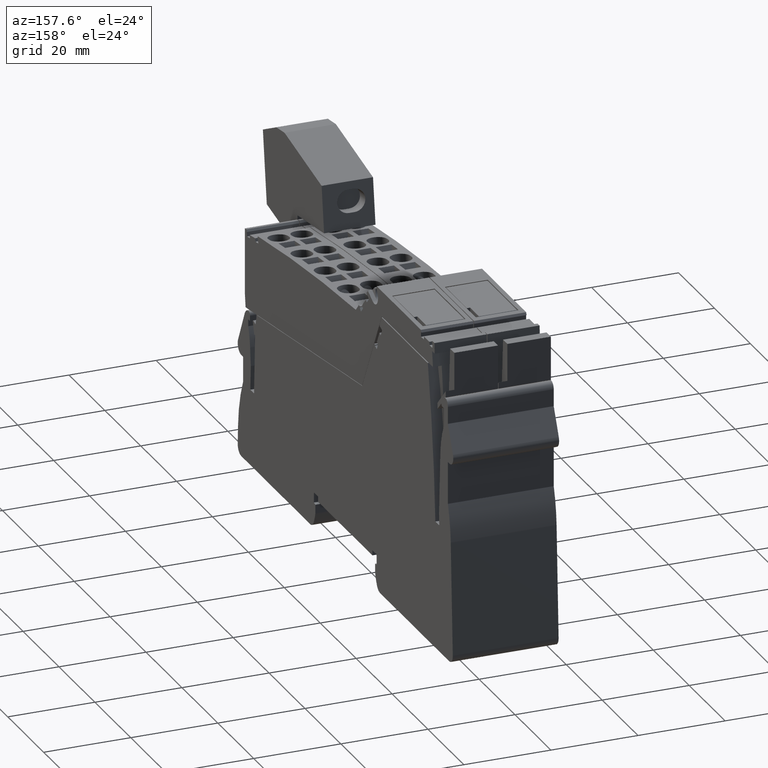
[diagram: clean part render]
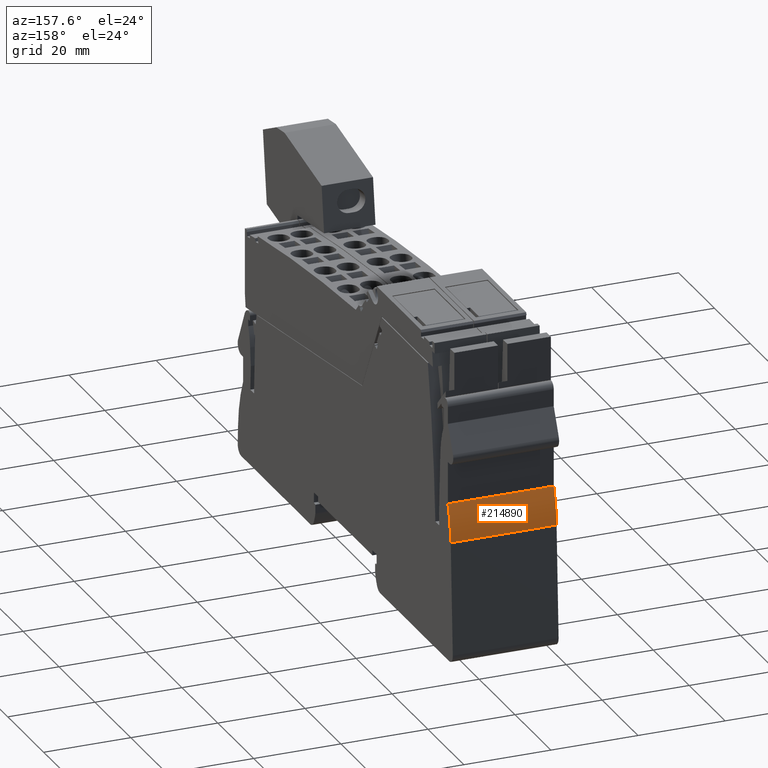
[diagram: same view with one face highlighted and labeled with its STEP entity id]
A machine part, auxiliary view. The second image highlights one B-rep face of the part: STEP entity #214890.
In plain terms, the highlighted cylindrical surface (partial cylindrical patch) has radius 30 mm, axis along (1, 0, 0).
Its self-contained STEP definition (entity closure, byte-faithful):
#198730=CARTESIAN_POINT('',(293.72862020886,-26.6633289582241,12.15));
#198740=VERTEX_POINT('',#198730);
#198770=CARTESIAN_POINT('',(265.338905386229,-36.3599310584288,12.15));
#198780=DIRECTION('',(1.61619556307429E-58,1.53640057743941E-44,1.));
#198790=DIRECTION('',(1.,-1.05193631583234E-14,0.));
#198800=AXIS2_PLACEMENT_3D('',#198770,#198780,#198790);
#198810=CIRCLE('',#198800,29.9999999999995);
#198820=CARTESIAN_POINT('',(295.310352033685,-35.0513494374691,12.15));
#198830=VERTEX_POINT('',#198820);
#198840=EDGE_CURVE('',#198830,#198740,#198810,.T.);
#210620=CARTESIAN_POINT('',(295.310352033685,-35.0513494374691,-12.15));
#210630=VERTEX_POINT('',#210620);
#210660=CARTESIAN_POINT('',(265.338905386229,-36.3599310584288,-12.15));
#210670=DIRECTION('',(1.61619556307429E-58,1.53640057743941E-44,1.));
#210680=DIRECTION('',(1.,-1.05193631583234E-14,0.));
#210690=AXIS2_PLACEMENT_3D('',#210660,#210670,#210680);
#210700=CIRCLE('',#210690,29.9999999999995);
#210710=CARTESIAN_POINT('',(293.72862020886,-26.6633289582241,-12.15));
#210720=VERTEX_POINT('',#210710);
#210730=EDGE_CURVE('',#210630,#210720,#210700,.T.);
#211030=CARTESIAN_POINT('',(293.72862020886,-26.6633289582241,-12.15));
#211040=DIRECTION('',(1.61619556307429E-58,1.53640057743941E-44,1.));
#211050=VECTOR('',#211040,1.);
#211060=LINE('',#211030,#211050);
#211070=EDGE_CURVE('',#210720,#198740,#211060,.T.);
#214600=CARTESIAN_POINT('',(295.310352033684,-35.051349437469,-12.15));
#214610=DIRECTION('',(1.61619556307429E-58,1.53640057743941E-44,1.));
#214620=VECTOR('',#214610,1.);
#214630=LINE('',#214600,#214620);
#214640=EDGE_CURVE('',#210630,#198830,#214630,.T.);
#214780=CARTESIAN_POINT('',(265.338905386229,-36.3599310584288,-12.15));
#214790=DIRECTION('',(1.61619556307429E-58,1.53640057743941E-44,1.));
#214800=DIRECTION('',(1.,-1.05193631583234E-14,0.));
#214810=AXIS2_PLACEMENT_3D('',#214780,#214790,#214800);
#214820=CYLINDRICAL_SURFACE('',#214810,29.9999999999995);
#214830=ORIENTED_EDGE('',*,*,#198840,.F.);
#214840=ORIENTED_EDGE('',*,*,#211070,.T.);
#214850=ORIENTED_EDGE('',*,*,#210730,.T.);
#214860=ORIENTED_EDGE('',*,*,#214640,.F.);
#214870=EDGE_LOOP('',(#214860,#214850,#214840,#214830));
#214880=FACE_OUTER_BOUND('',#214870,.T.);
#214890=ADVANCED_FACE('',(#214880),#214820,.T.);